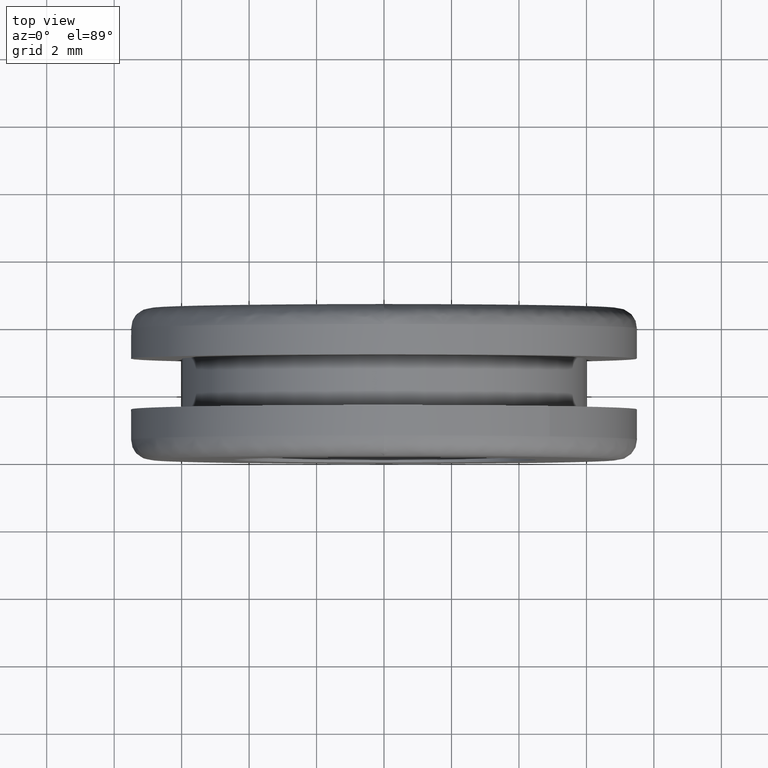
[diagram: clean part render]
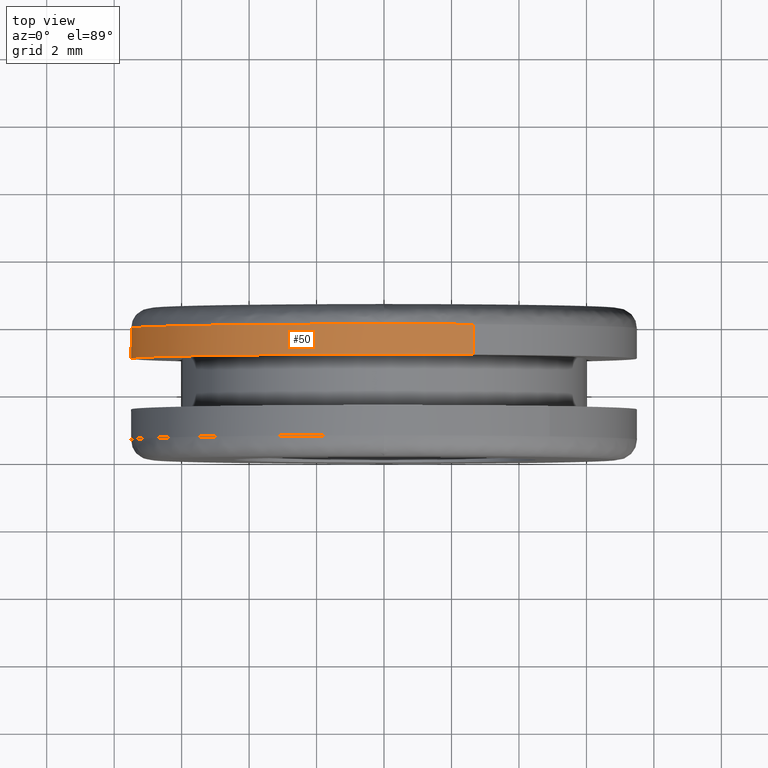
[diagram: same view with one face highlighted and labeled with its STEP entity id]
A machine part, top view. The second image highlights one B-rep face of the part: STEP entity #50.
In plain terms, the highlighted cylindrical surface (partial cylindrical patch) has radius 7.5 mm, axis along (0, 1, -0).
Its self-contained STEP definition (entity closure, byte-faithful):
#50=ADVANCED_FACE('',(#161),#160,.T.);
#160=CYLINDRICAL_SURFACE('',#277,7.50000000000E+000);
#161=FACE_OUTER_BOUND('',#278,.T.);
#274=CARTESIAN_POINT('',(3.33664112627E-016,3.92250000001E+000,-9.54212877895E-017));
#275=DIRECTION('',(7.05747346417E-016,1.00000000000E+000,-2.01829678712E-016));
#276=DIRECTION('',(-3.51617974392E-001,5.92118946467E-017,-9.36143578777E-001));
#277=AXIS2_PLACEMENT_3D('',#274,#275,#276);
#278=EDGE_LOOP('',(#444,#445,#446,#447,#448,#449));
#444=ORIENTED_EDGE('',*,*,#515,.T.);
#445=ORIENTED_EDGE('',*,*,#516,.T.);
#446=ORIENTED_EDGE('',*,*,#517,.T.);
#447=ORIENTED_EDGE('',*,*,#518,.F.);
#448=ORIENTED_EDGE('',*,*,#487,.F.);
#449=ORIENTED_EDGE('',*,*,#519,.T.);
#487=EDGE_CURVE('',#569,#576,#577,.T.);
#515=EDGE_CURVE('',#765,#766,#767,.T.);
#516=EDGE_CURVE('',#766,#773,#774,.T.);
#517=EDGE_CURVE('',#773,#780,#781,.T.);
#518=EDGE_CURVE('',#576,#780,#787,.T.);
#519=EDGE_CURVE('',#569,#765,#793,.T.);
#569=VERTEX_POINT('',#867);
#576=VERTEX_POINT('',#872);
#577=CIRCLE('',#876,7.49999999998E+000);
#765=VERTEX_POINT('',#993);
#766=VERTEX_POINT('',#994);
#767=CIRCLE('',#998,7.49999999998E+000);
#773=VERTEX_POINT('',#999);
#774=CIRCLE('',#1003,7.49999999998E+000);
#780=VERTEX_POINT('',#1004);
#781=CIRCLE('',#1008,7.50000000000E+000);
#787=(BOUNDED_CURVE() B_SPLINE_CURVE(1,(#1009,#1010),.UNSPECIFIED.,.F.,.F.) B_SPLINE_CURVE_WITH_KNOTS((2,2),(8.33332935974E-002,9.16666633252E-001),.UNSPECIFIED.) CURVE() GEOMETRIC_REPRESENTATION_ITEM() RATIONAL_B_SPLINE_CURVE((1.00000000000E+000,1.00000000000E+000)) REPRESENTATION_ITEM('') );
#793=(BOUNDED_CURVE() B_SPLINE_CURVE(1,(#1011,#1012),.UNSPECIFIED.,.F.,.F.) B_SPLINE_CURVE_WITH_KNOTS((2,2),(8.33333333334E-002,9.16666666661E-001),.UNSPECIFIED.) CURVE() GEOMETRIC_REPRESENTATION_ITEM() RATIONAL_B_SPLINE_CURVE((7.50000000000E-001,7.50000000000E-001)) REPRESENTATION_ITEM('') );
#867=CARTESIAN_POINT('',(2.63668732721E+000,3.00000000000E+000,7.02124489948E+000));
#872=CARTESIAN_POINT('',(-2.63713485361E+000,3.00000000000E+000,-7.02107682362E+000));
#873=CARTESIAN_POINT('',(6.28386231938E-014,3.00000000000E+000,2.09210426760E-011));
#874=DIRECTION('',(3.64852299781E-016,-1.00000000000E+000,3.53151034214E-015));
#875=DIRECTION('',(-8.38218383592E-015,-3.53151034214E-015,-1.00000000000E+000));
#876=AXIS2_PLACEMENT_3D('',#873,#874,#875);
#993=CARTESIAN_POINT('',(2.63827806722E+000,3.90000000000E+000,7.02064732343E+000));
#994=CARTESIAN_POINT('',(-1.64699003846E-014,3.90000000000E+000,7.50000000000E+000));
#995=CARTESIAN_POINT('',(6.70574706874E-014,3.90000000000E+000,2.04591898978E-011));
#996=DIRECTION('',(1.89461399911E-015,-1.00000000000E+000,5.04420708884E-015));
#997=DIRECTION('',(-3.51617427213E-001,-5.38828241286E-015,-9.36143784298E-001));
#998=AXIS2_PLACEMENT_3D('',#995,#996,#997);
#999=CARTESIAN_POINT('',(-2.64976474995E+000,3.90000000001E+000,-7.01632003047E+000));
#1000=CARTESIAN_POINT('',(6.70574706874E-014,3.90000000000E+000,2.04591898978E-011));
#1001=DIRECTION('',(1.89461399911E-015,-1.00000000000E+000,5.04420708884E-015));
#1002=DIRECTION('',(-3.51617427213E-001,-5.38828241286E-015,-9.36143784298E-001));
#1003=AXIS2_PLACEMENT_3D('',#1000,#1001,#1002);
#1004=CARTESIAN_POINT('',(-2.63713480046E+000,3.90000000001E+000,-7.02107684363E+000));
#1005=CARTESIAN_POINT('',(-1.01474384451E-013,3.90000000015E+000,-5.79092329644E-013));
#1006=DIRECTION('',(1.14491859716E-015,-1.00000000000E+000,1.98618427697E-011));
#1007=DIRECTION('',(3.53301966660E-001,1.85813438710E-011,9.35509337395E-001));
#1008=AXIS2_PLACEMENT_3D('',#1005,#1006,#1007);
#1009=CARTESIAN_POINT('',(-2.63713480794E+000,2.99999995709E+000,-7.02107684082E+000));
#1010=CARTESIAN_POINT('',(-2.63713480794E+000,3.89999996392E+000,-7.02107684082E+000));
#1011=CARTESIAN_POINT('',(2.63713480794E+000,3.00000000000E+000,7.02107684082E+000));
#1012=CARTESIAN_POINT('',(2.63713480794E+000,3.90000000000E+000,7.02107684082E+000));